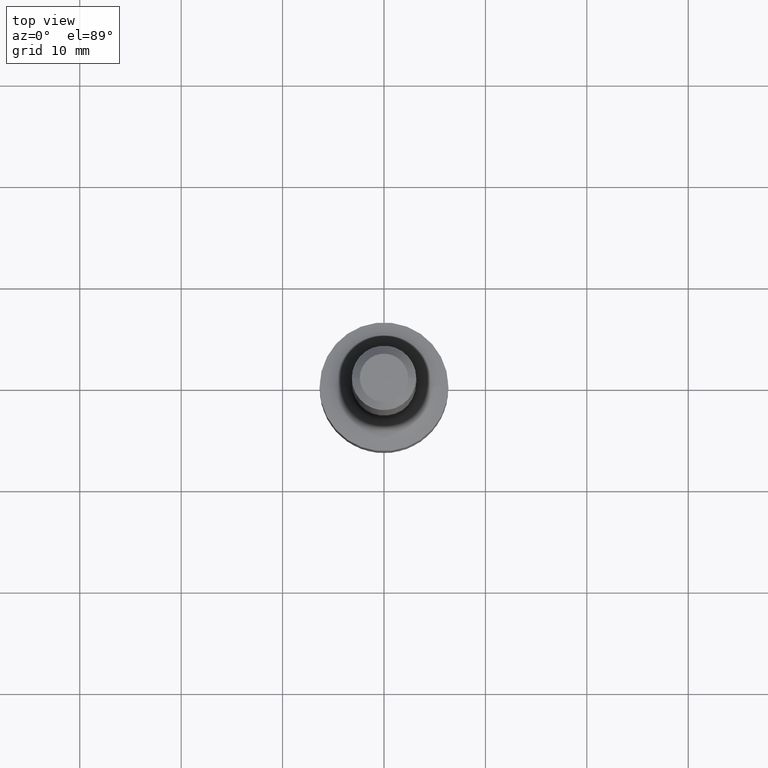
[diagram: clean part render]
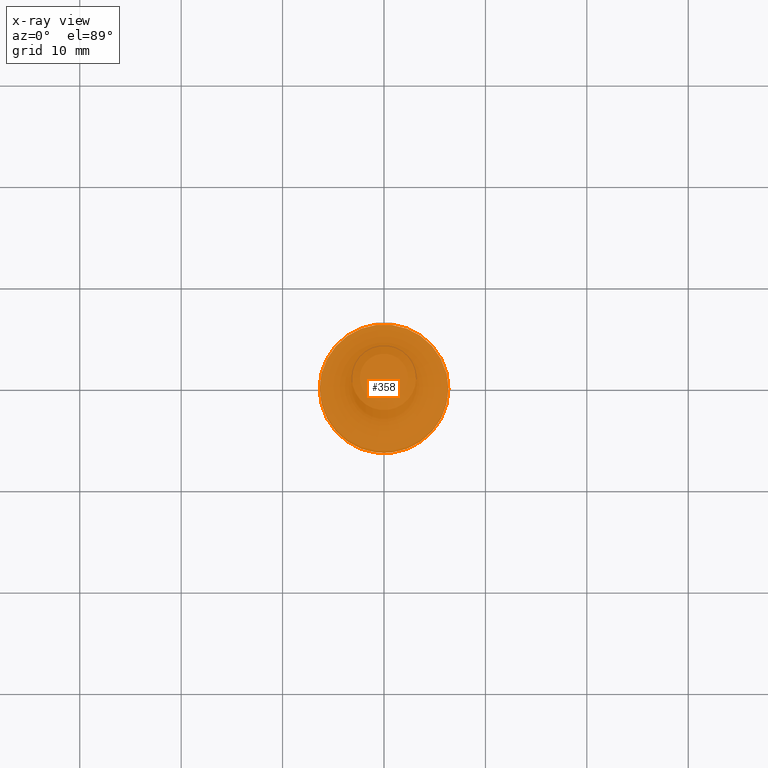
[diagram: x-ray — body ghosted, one internal face saturated and labeled with its STEP entity id]
A machine part, top view, then the same camera in x-ray: the body is ghosted and one INTERNAL B-rep face — a face not visible from any outside direction — is saturated and labeled: STEP entity #358.
In plain terms, the highlighted planar face has unit normal (-0, 0, 1).
Its self-contained STEP definition (entity closure, byte-faithful):
#11 = CARTESIAN_POINT ( 'NONE',  ( -0.2494999999999999718, -6.735838435193878049E-15, -2.437730854637629729 ) ) ;
#58 = CARTESIAN_POINT ( 'NONE',  ( 0.2494999999999999718, -1.025354097617216170E-14, -2.437730854637629729 ) ) ;
#69 = DIRECTION ( 'NONE',  ( -2.438088387897960049E-29, 3.491481338843145188E-15, 1.000000000000000000 ) ) ;
#90 = DIRECTION ( 'NONE',  ( -2.445468806185136597E-29, 3.491481338843145583E-15, 1.000000000000000000 ) ) ;
#109 = DIRECTION ( 'NONE',  ( -2.445468806185136597E-29, 3.491481338843145583E-15, 1.000000000000000000 ) ) ;
#133 = AXIS2_PLACEMENT_3D ( 'NONE', #430, #69, #391 ) ;
#136 = ORIENTED_EDGE ( 'NONE', *, *, #317, .F. ) ;
#160 = FACE_OUTER_BOUND ( 'NONE', #368, .T. ) ;
#183 = CIRCLE ( 'NONE', #314, 0.2494999999999999718 ) ;
#190 = VERTEX_POINT ( 'NONE', #58 ) ;
#229 = VERTEX_POINT ( 'NONE', #11 ) ;
#239 = PLANE ( 'NONE',  #133 ) ;
#292 = DIRECTION ( 'NONE',  ( 1.000000000000000000, -6.982962677686265922E-15, 0.000000000000000000 ) ) ;
#307 = AXIS2_PLACEMENT_3D ( 'NONE', #450, #90, #292 ) ;
#314 = AXIS2_PLACEMENT_3D ( 'NONE', #395, #109, #473 ) ;
#317 = EDGE_CURVE ( 'NONE', #229, #190, #345, .T. ) ;
#318 = EDGE_CURVE ( 'NONE', #190, #229, #183, .T. ) ;
#345 = CIRCLE ( 'NONE', #307, 0.2494999999999999718 ) ;
#358 = ADVANCED_FACE ( 'NONE', ( #160 ), #239, .F. ) ;
#368 = EDGE_LOOP ( 'NONE', ( #475, #136 ) ) ;
#391 = DIRECTION ( 'NONE',  ( 1.000000000000000000, -6.982962677686265922E-15, 4.876176775795935793E-29 ) ) ;
#395 = CARTESIAN_POINT ( 'NONE',  ( 5.961394762891357797E-29, -8.511291788089438028E-15, -2.437730854637629729 ) ) ;
#430 = CARTESIAN_POINT ( 'NONE',  ( 5.961394762891357797E-29, -8.511291788089438028E-15, -2.437730854637629729 ) ) ;
#450 = CARTESIAN_POINT ( 'NONE',  ( 5.961394762891357797E-29, -8.511291788089438028E-15, -2.437730854637629729 ) ) ;
#473 = DIRECTION ( 'NONE',  ( 1.000000000000000000, -6.982962677686265922E-15, 0.000000000000000000 ) ) ;
#475 = ORIENTED_EDGE ( 'NONE', *, *, #318, .F. ) ;